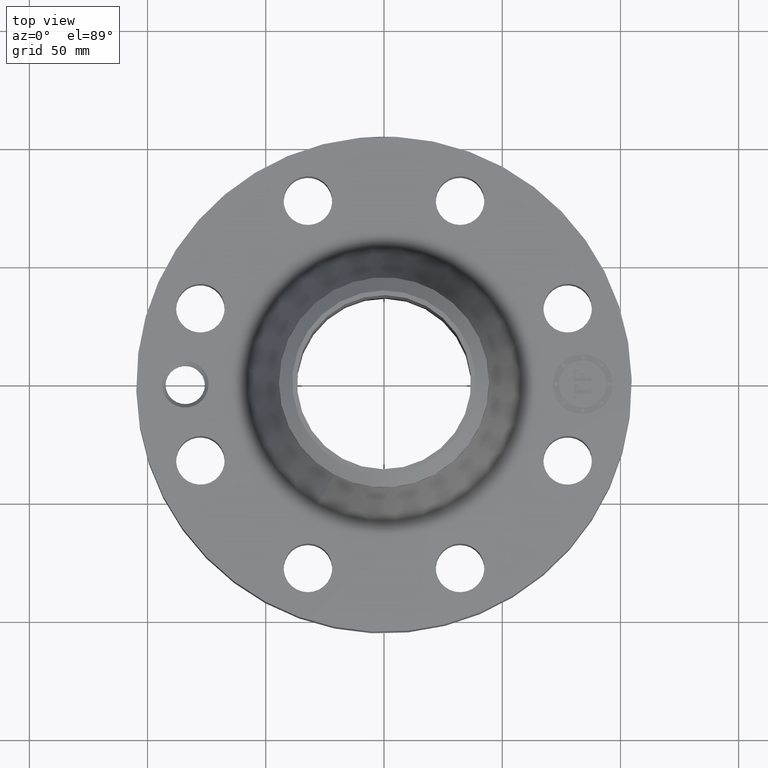
[diagram: clean part render]
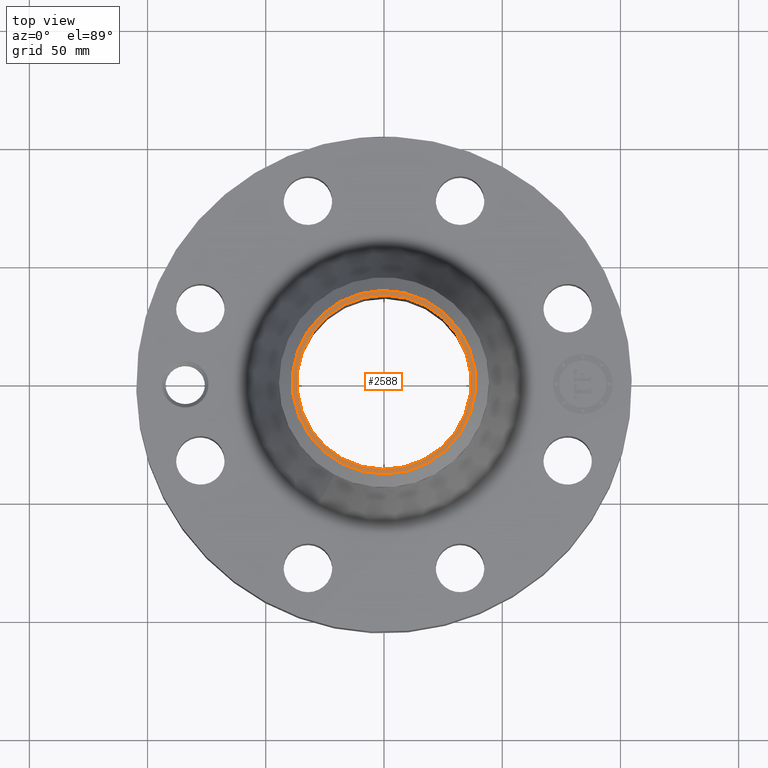
[diagram: same view with one face highlighted and labeled with its STEP entity id]
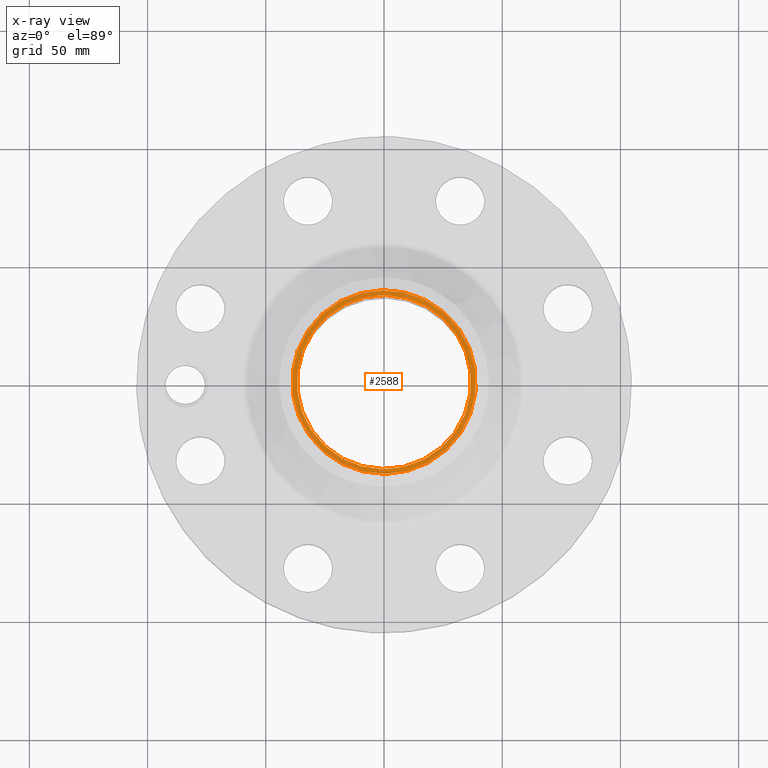
[diagram: x-ray of the same camera — body ghosted, the highlighted face saturated]
A machine part, top view. The second image highlights one B-rep face of the part: STEP entity #2588.
The next image is the same camera in x-ray: the body ghosted, the highlighted face saturated — about 0% of this face is hidden behind the body in this view.
In plain terms, the highlighted planar face has unit normal (0, 0, -1).
Its self-contained STEP definition (entity closure, byte-faithful):
#1331=AXIS2_PLACEMENT_3D('Circle Axis2P3D',#1329,#1330,$) ;
#1399=AXIS2_PLACEMENT_3D('Circle Axis2P3D',#1397,#1398,$) ;
#2564=AXIS2_PLACEMENT_3D('Plane Axis2P3D',#2561,#2562,#2563) ;
#2568=AXIS2_PLACEMENT_3D('Circle Axis2P3D',#2566,#2567,$) ;
#2577=AXIS2_PLACEMENT_3D('Circle Axis2P3D',#2575,#2576,$) ;
#1329=CARTESIAN_POINT('Axis2P3D Location',(0.,0.,3.56000000001)) ;
#1333=CARTESIAN_POINT('Vertex',(0.695167030979,1.27249471475,3.56000000001)) ;
#1335=CARTESIAN_POINT('Vertex',(-0.695167030979,-1.27249471475,3.56000000001)) ;
#1397=CARTESIAN_POINT('Axis2P3D Location',(0.,0.,3.56000000001)) ;
#2561=CARTESIAN_POINT('Axis2P3D Location',(0.,1.75000000001,3.56000000001)) ;
#2566=CARTESIAN_POINT('Axis2P3D Location',(0.,0.,3.56000000001)) ;
#2570=CARTESIAN_POINT('Vertex',(0.732917073389,-1.34159570387,3.56000000001)) ;
#2572=CARTESIAN_POINT('Vertex',(-0.732917073389,1.34159570387,3.56000000001)) ;
#2575=CARTESIAN_POINT('Axis2P3D Location',(0.,0.,3.56000000001)) ;
#1330=DIRECTION('Axis2P3D Direction',(0.,0.,-0.0393700787402)) ;
#1398=DIRECTION('Axis2P3D Direction',(0.,0.,-0.0393700787402)) ;
#2562=DIRECTION('Axis2P3D Direction',(0.,0.,-0.0393700787402)) ;
#2563=DIRECTION('Axis2P3D XDirection',(0.0393700787402,0.,0.)) ;
#2567=DIRECTION('Axis2P3D Direction',(0.,0.,-0.0393700787402)) ;
#2576=DIRECTION('Axis2P3D Direction',(0.,0.,-0.0393700787402)) ;
#2581=ORIENTED_EDGE('',*,*,#2574,.T.) ;
#2582=ORIENTED_EDGE('',*,*,#2579,.T.) ;
#2585=ORIENTED_EDGE('',*,*,#1401,.T.) ;
#2586=ORIENTED_EDGE('',*,*,#1337,.T.) ;
#2587=FACE_BOUND('',#2584,.T.) ;
#2588=ADVANCED_FACE('PartBody',(#2583,#2587),#2565,.F.) ;
#1332=CIRCLE('generated circle',#1331,1.45000000001) ;
#1400=CIRCLE('generated circle',#1399,1.45000000001) ;
#2569=CIRCLE('generated circle',#2568,1.52874015749) ;
#2578=CIRCLE('generated circle',#2577,1.52874015749) ;
#1337=EDGE_CURVE('',#1334,#1336,#1332,.T.) ;
#1401=EDGE_CURVE('',#1336,#1334,#1400,.T.) ;
#2574=EDGE_CURVE('',#2571,#2573,#2569,.F.) ;
#2579=EDGE_CURVE('',#2573,#2571,#2578,.F.) ;
#2580=EDGE_LOOP('',(#2581,#2582)) ;
#2584=EDGE_LOOP('',(#2585,#2586)) ;
#2583=FACE_OUTER_BOUND('',#2580,.T.) ;
#2565=PLANE('',#2564) ;
#1334=VERTEX_POINT('',#1333) ;
#1336=VERTEX_POINT('',#1335) ;
#2571=VERTEX_POINT('',#2570) ;
#2573=VERTEX_POINT('',#2572) ;